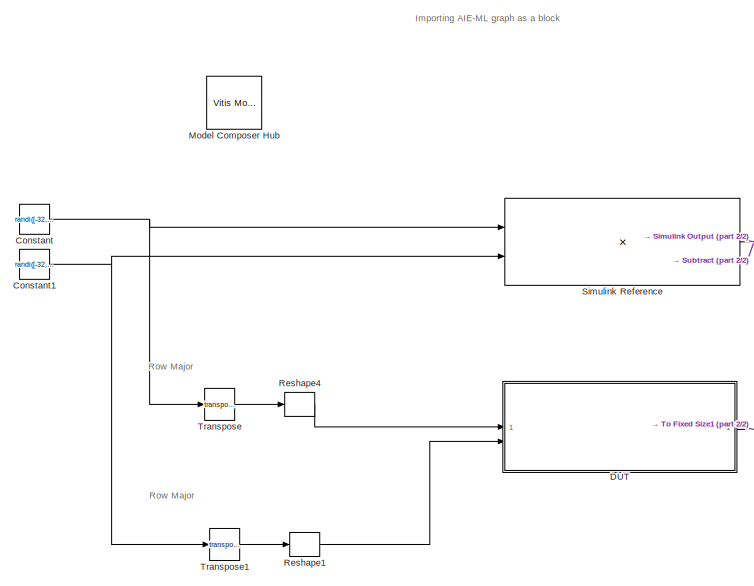
[diagram: root canvas - part 1/2, left side, full height]
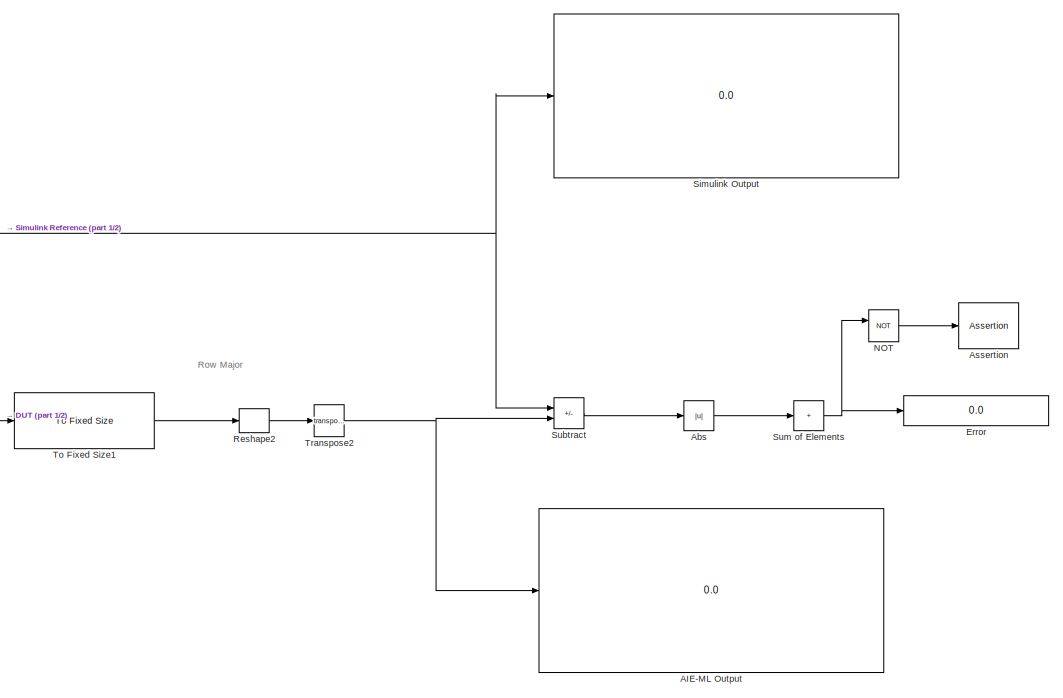
[diagram: root canvas - part 2/2, right side, full height]
MODEL slx_5c7e3198ffa5
KIND model
CONFIG AbsTol = auto
CONFIG EnableMultiTasking = off
CONFIG FixedStep = auto
CONFIG MaxStep = auto
CONFIG MinStep = auto
CONFIG RelTol = 1e-3
CONFIG SampleTimeConstraint = Unconstrained
CONFIG SolverName = VariableStepAuto
CONFIG StartTime = 0.0
CONFIG StopTime = 62
BLOCK [Display] AIE-ML Output
  Decimation = 1
BLOCK [Abs] Abs
  SaturateOnIntegerOverflow = off
BLOCK [Assertion] Assertion
BLOCK [Constant] Constant
  OutDataTypeStr = int8
  SampleTime = 1
  Value = randi([-32,32],64,64)
  VectorParams1D = off
BLOCK [Constant] Constant1
  OutDataTypeStr = int8
  SampleTime = 1
  Value = randi([-32,32],64,64)
  VectorParams1D = off
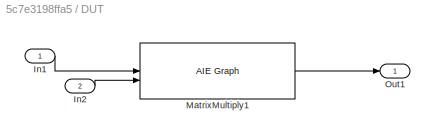
BLOCK [SubSystem] DUT
BLOCK [Inport] DUT/In1
BLOCK [Inport] DUT/In2
  Port = 2
BLOCK [Reference] DUT/MatrixMultiply1  REF=aieBasic/AIE Graph
  SourceBlock = aieBasic/AIE Graph
  SourceType = AIE Graph Function
BLOCK [Outport] DUT/Out1
BLOCK [Display] Error
  Decimation = 1
BLOCK [Reference] Model Composer Hub  REF=vmcUtilities/Vitis Model Composer Hub
  Description = Performs multiplication
  SourceBlock = vmcUtilities/Vitis Model Composer Hub
  SourceType = VMC Hub
  Tag = genX
  UserDataPersistent = on
BLOCK [Logic] NOT
  AllPortsSameDT = off
  IconShape = distinctive
  Operator = NOT
  OutDataTypeStr = boolean
BLOCK [Reshape] Reshape1
  OutputDimensions = [16,16]
BLOCK [Reshape] Reshape2
  OutputDimensionality = Customize
  OutputDimensions = [64,64]
BLOCK [Reshape] Reshape4
  OutputDimensions = [16,16]
BLOCK [Display] Simulink Output
  Decimation = 1
BLOCK [Product] Simulink Reference
  Multiplication = Matrix(*)
  OutDataTypeStr = int32
BLOCK [Sum] Subtract
  IconShape = rectangular
  Inputs = +-
  OutDataTypeStr = double
BLOCK [Sum] Sum of Elements
  IconShape = rectangular
  Inputs = +
BLOCK [Reference] To Fixed Size1  REF=aieUtilities/To Fixed Size
  SourceBlock = aieUtilities/To Fixed Size
  SourceType = To Fixed Size
BLOCK [Math] Transpose
  Operator = transpose
BLOCK [Math] Transpose1
  Operator = transpose
BLOCK [Math] Transpose2
  Operator = transpose
ANNOTATION (root): Importing AIE-ML graph as a block
ANNOTATION (root): Row Major
LINE Abs:1 -> Sum of Elements:1
NET Constant1:1 -> Simulink Reference:2, Transpose1:1
NET Constant:1 -> Simulink Reference:1, Transpose:1
LINE DUT/In1:1 -> DUT/MatrixMultiply1:1
LINE DUT/In2:1 -> DUT/MatrixMultiply1:2
LINE DUT/MatrixMultiply1:1 -> DUT/Out1:1
LINE DUT:1 -> To Fixed Size1:1
LINE NOT:1 -> Assertion:1
LINE Reshape1:1 -> DUT:2
LINE Reshape2:1 -> Transpose2:1
LINE Reshape4:1 -> DUT:1
NET Simulink Reference:1 -> Simulink Output:1, Subtract:1
LINE Subtract:1 -> Abs:1
NET Sum of Elements:1 -> Error:1, NOT:1
LINE To Fixed Size1:1 -> Reshape2:1
LINE Transpose1:1 -> Reshape1:1
NET Transpose2:1 -> AIE-ML Output:1, Subtract:2
LINE Transpose:1 -> Reshape4:1
note: NET lines group one-source signal fan-out (src -> all destinations, sorted); 1:1 wires keep LINE
